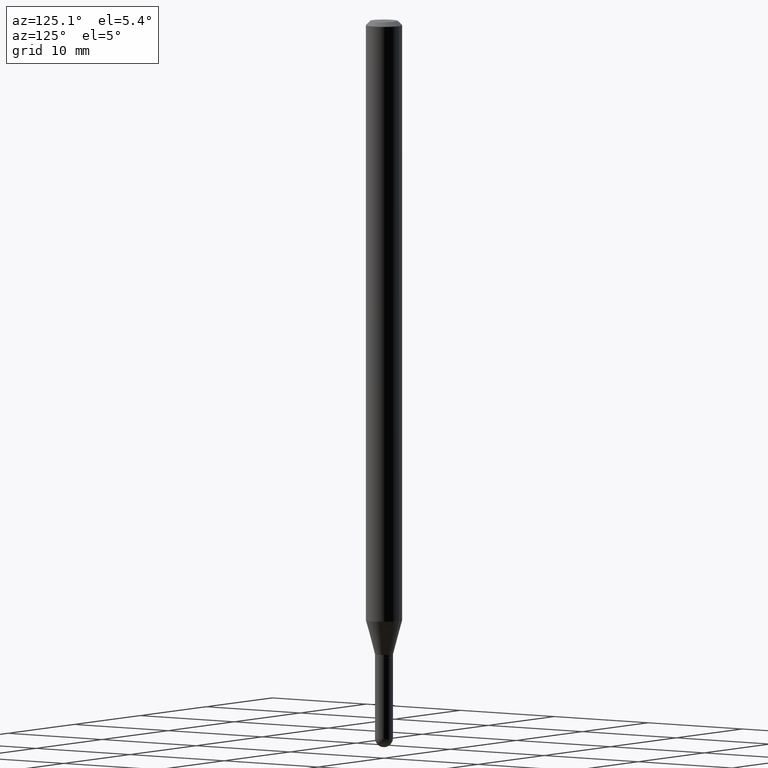
[diagram: clean part render]
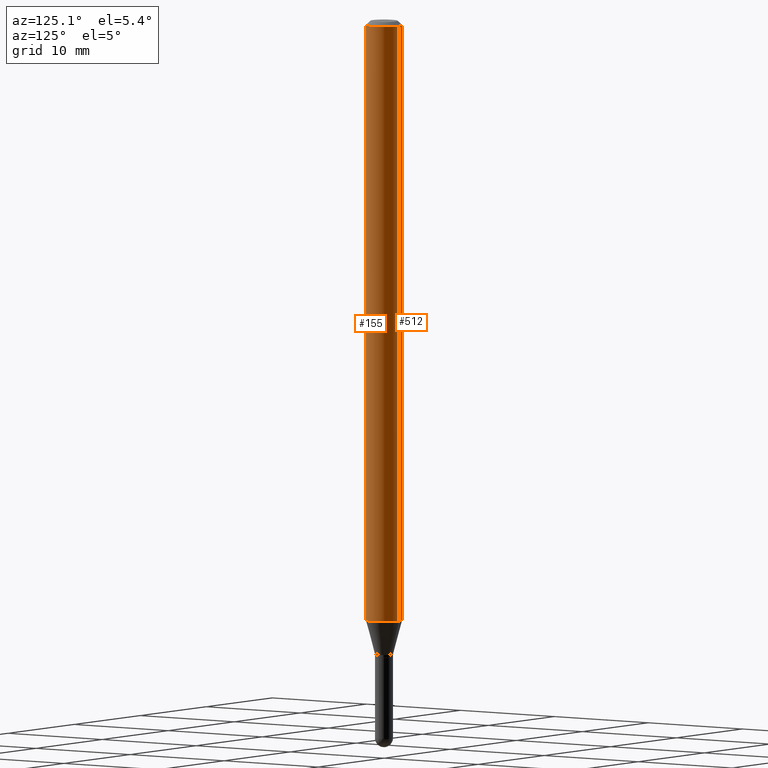
[diagram: same view with one multi-face feature highlighted, each face labeled with its STEP entity id]
A machine part, auxiliary view. The highlighted faces form ONE feature: a constant-radius fillet chain: 2 tangent blend faces with common blend radius 1.5875 mm. The faces share edges in the B-rep.
Their STEP definitions:
[1] entity #512 (Cylinder):
#18 = VERTEX_POINT ( 'NONE', #35 ) ;
#35 = CARTESIAN_POINT ( 'NONE',  ( 4.440892098501133005E-16, 0.06249999999999995143, -0.01500000000000022669 ) ) ;
#38 = CARTESIAN_POINT ( 'NONE',  ( 0.000000000000000000, 0.000000000000000000, 0.000000000000000000 ) ) ;
#49 = AXIS2_PLACEMENT_3D ( 'NONE', #473, #194, #230 ) ;
#50 = CYLINDRICAL_SURFACE ( 'NONE', #121, 0.06250000000000000000 ) ;
#51 = EDGE_CURVE ( 'NONE', #457, #18, #111, .T. ) ;
#59 = LINE ( 'NONE', #62, #354 ) ;
#62 = CARTESIAN_POINT ( 'NONE',  ( -4.364351673553916201E-16, -0.06250000000000000000, 2.182165642633950172E-16 ) ) ;
#66 = VECTOR ( 'NONE', #348, 39.37007874015748143 ) ;
#88 = ORIENTED_EDGE ( 'NONE', *, *, #507, .T. ) ;
#111 = LINE ( 'NONE', #425, #66 ) ;
#113 = ORIENTED_EDGE ( 'NONE', *, *, #223, .F. ) ;
#118 = DIRECTION ( 'NONE',  ( -6.982962677686265922E-15, -1.000000000000000000, 3.491465028214320276E-15 ) ) ;
#121 = AXIS2_PLACEMENT_3D ( 'NONE', #38, #394, #118 ) ;
#136 = DIRECTION ( 'NONE',  ( -2.445480195836370000E-29, 3.491465028214320670E-15, 1.000000000000000000 ) ) ;
#143 = DIRECTION ( 'NONE',  ( -2.445480195836369720E-29, 3.491465028214321065E-15, 1.000000000000000000 ) ) ;
#170 = VERTEX_POINT ( 'NONE', #245 ) ;
#194 = DIRECTION ( 'NONE',  ( -2.445480195836370000E-29, 3.491465028214320670E-15, 1.000000000000000000 ) ) ;
#215 = EDGE_CURVE ( 'NONE', #170, #226, #59, .T. ) ;
#223 = EDGE_CURVE ( 'NONE', #18, #226, #426, .T. ) ;
#226 = VERTEX_POINT ( 'NONE', #248 ) ;
#230 = DIRECTION ( 'NONE',  ( -6.982962677686265922E-15, -1.000000000000000000, 4.370956789862821150E-15 ) ) ;
#245 = CARTESIAN_POINT ( 'NONE',  ( -4.364351673553413795E-16, -0.06250000000000723033, -2.062440399561580318 ) ) ;
#246 = ORIENTED_EDGE ( 'NONE', *, *, #51, .F. ) ;
#248 = CARTESIAN_POINT ( 'NONE',  ( -4.364351673553912750E-16, -0.06250000000000005551, -0.01499999999999979128 ) ) ;
#290 = EDGE_LOOP ( 'NONE', ( #246, #88, #419, #113 ) ) ;
#302 = CARTESIAN_POINT ( 'NONE',  ( 4.440892098501128074E-16, 0.06249999999999278355, -2.062440399561580762 ) ) ;
#348 = DIRECTION ( 'NONE',  ( -2.445480195836369720E-29, 3.491465028214321065E-15, 1.000000000000000000 ) ) ;
#354 = VECTOR ( 'NONE', #143, 39.37007874015748143 ) ;
#390 = FACE_OUTER_BOUND ( 'NONE', #290, .T. ) ;
#394 = DIRECTION ( 'NONE',  ( -2.445480195836370000E-29, 3.491465028214320670E-15, 1.000000000000000000 ) ) ;
#403 = DIRECTION ( 'NONE',  ( -6.982962677686265922E-15, -1.000000000000000000, 3.483106191921935554E-15 ) ) ;
#419 = ORIENTED_EDGE ( 'NONE', *, *, #215, .T. ) ;
#425 = CARTESIAN_POINT ( 'NONE',  ( 4.440892098500625669E-16, 0.06250000000000000000, -2.182165642633950172E-16 ) ) ;
#426 = CIRCLE ( 'NONE', #491, 0.06250000000000000000 ) ;
#448 = CIRCLE ( 'NONE', #49, 0.06250000000000000000 ) ;
#457 = VERTEX_POINT ( 'NONE', #302 ) ;
#473 = CARTESIAN_POINT ( 'NONE',  ( 5.043657152220695549E-29, -7.200938527845627265E-15, -2.062440399561580762 ) ) ;
#491 = AXIS2_PLACEMENT_3D ( 'NONE', #495, #136, #403 ) ;
#495 = CARTESIAN_POINT ( 'NONE',  ( 3.668220293754557539E-31, -5.237197542321484358E-17, -0.01500000000000000812 ) ) ;
#507 = EDGE_CURVE ( 'NONE', #457, #170, #448, .T. ) ;
#512 = ADVANCED_FACE ( 'NONE', ( #390 ), #50, .T. ) ;
[2] entity #155 (Cylinder):
#13 = DIRECTION ( 'NONE',  ( -6.982962677686265922E-15, -1.000000000000000000, 4.370956789862821150E-15 ) ) ;
#18 = VERTEX_POINT ( 'NONE', #35 ) ;
#26 = CARTESIAN_POINT ( 'NONE',  ( 3.668220293754557539E-31, -5.237197542321484358E-17, -0.01500000000000000812 ) ) ;
#29 = ORIENTED_EDGE ( 'NONE', *, *, #215, .F. ) ;
#35 = CARTESIAN_POINT ( 'NONE',  ( 4.440892098501133005E-16, 0.06249999999999995143, -0.01500000000000022669 ) ) ;
#45 = EDGE_CURVE ( 'NONE', #226, #18, #277, .T. ) ;
#51 = EDGE_CURVE ( 'NONE', #457, #18, #111, .T. ) ;
#59 = LINE ( 'NONE', #62, #354 ) ;
#62 = CARTESIAN_POINT ( 'NONE',  ( -4.364351673553916201E-16, -0.06250000000000000000, 2.182165642633950172E-16 ) ) ;
#66 = VECTOR ( 'NONE', #348, 39.37007874015748143 ) ;
#70 = DIRECTION ( 'NONE',  ( -2.445480195836370000E-29, 3.491465028214320670E-15, 1.000000000000000000 ) ) ;
#108 = DIRECTION ( 'NONE',  ( -6.982962677686265922E-15, -1.000000000000000000, 3.491465028214320276E-15 ) ) ;
#111 = LINE ( 'NONE', #425, #66 ) ;
#127 = AXIS2_PLACEMENT_3D ( 'NONE', #214, #462, #108 ) ;
#140 = EDGE_LOOP ( 'NONE', ( #487, #349, #268, #29 ) ) ;
#143 = DIRECTION ( 'NONE',  ( -2.445480195836369720E-29, 3.491465028214321065E-15, 1.000000000000000000 ) ) ;
#155 = ADVANCED_FACE ( 'NONE', ( #252 ), #420, .T. ) ;
#170 = VERTEX_POINT ( 'NONE', #245 ) ;
#171 = AXIS2_PLACEMENT_3D ( 'NONE', #330, #200, #13 ) ;
#200 = DIRECTION ( 'NONE',  ( -2.445480195836370000E-29, 3.491465028214320670E-15, 1.000000000000000000 ) ) ;
#214 = CARTESIAN_POINT ( 'NONE',  ( 0.000000000000000000, 0.000000000000000000, 0.000000000000000000 ) ) ;
#215 = EDGE_CURVE ( 'NONE', #170, #226, #59, .T. ) ;
#226 = VERTEX_POINT ( 'NONE', #248 ) ;
#245 = CARTESIAN_POINT ( 'NONE',  ( -4.364351673553413795E-16, -0.06250000000000723033, -2.062440399561580318 ) ) ;
#248 = CARTESIAN_POINT ( 'NONE',  ( -4.364351673553912750E-16, -0.06250000000000005551, -0.01499999999999979128 ) ) ;
#252 = FACE_OUTER_BOUND ( 'NONE', #140, .T. ) ;
#268 = ORIENTED_EDGE ( 'NONE', *, *, #45, .F. ) ;
#269 = AXIS2_PLACEMENT_3D ( 'NONE', #26, #70, #308 ) ;
#277 = CIRCLE ( 'NONE', #269, 0.06250000000000000000 ) ;
#302 = CARTESIAN_POINT ( 'NONE',  ( 4.440892098501128074E-16, 0.06249999999999278355, -2.062440399561580762 ) ) ;
#308 = DIRECTION ( 'NONE',  ( -6.982962677686265922E-15, -1.000000000000000000, 3.483106191921935554E-15 ) ) ;
#330 = CARTESIAN_POINT ( 'NONE',  ( 5.043657152220695549E-29, -7.200938527845627265E-15, -2.062440399561580762 ) ) ;
#348 = DIRECTION ( 'NONE',  ( -2.445480195836369720E-29, 3.491465028214321065E-15, 1.000000000000000000 ) ) ;
#349 = ORIENTED_EDGE ( 'NONE', *, *, #51, .T. ) ;
#354 = VECTOR ( 'NONE', #143, 39.37007874015748143 ) ;
#355 = CIRCLE ( 'NONE', #171, 0.06250000000000000000 ) ;
#420 = CYLINDRICAL_SURFACE ( 'NONE', #127, 0.06250000000000000000 ) ;
#425 = CARTESIAN_POINT ( 'NONE',  ( 4.440892098500625669E-16, 0.06250000000000000000, -2.182165642633950172E-16 ) ) ;
#457 = VERTEX_POINT ( 'NONE', #302 ) ;
#462 = DIRECTION ( 'NONE',  ( -2.445480195836370000E-29, 3.491465028214320670E-15, 1.000000000000000000 ) ) ;
#472 = EDGE_CURVE ( 'NONE', #170, #457, #355, .T. ) ;
#487 = ORIENTED_EDGE ( 'NONE', *, *, #472, .T. ) ;